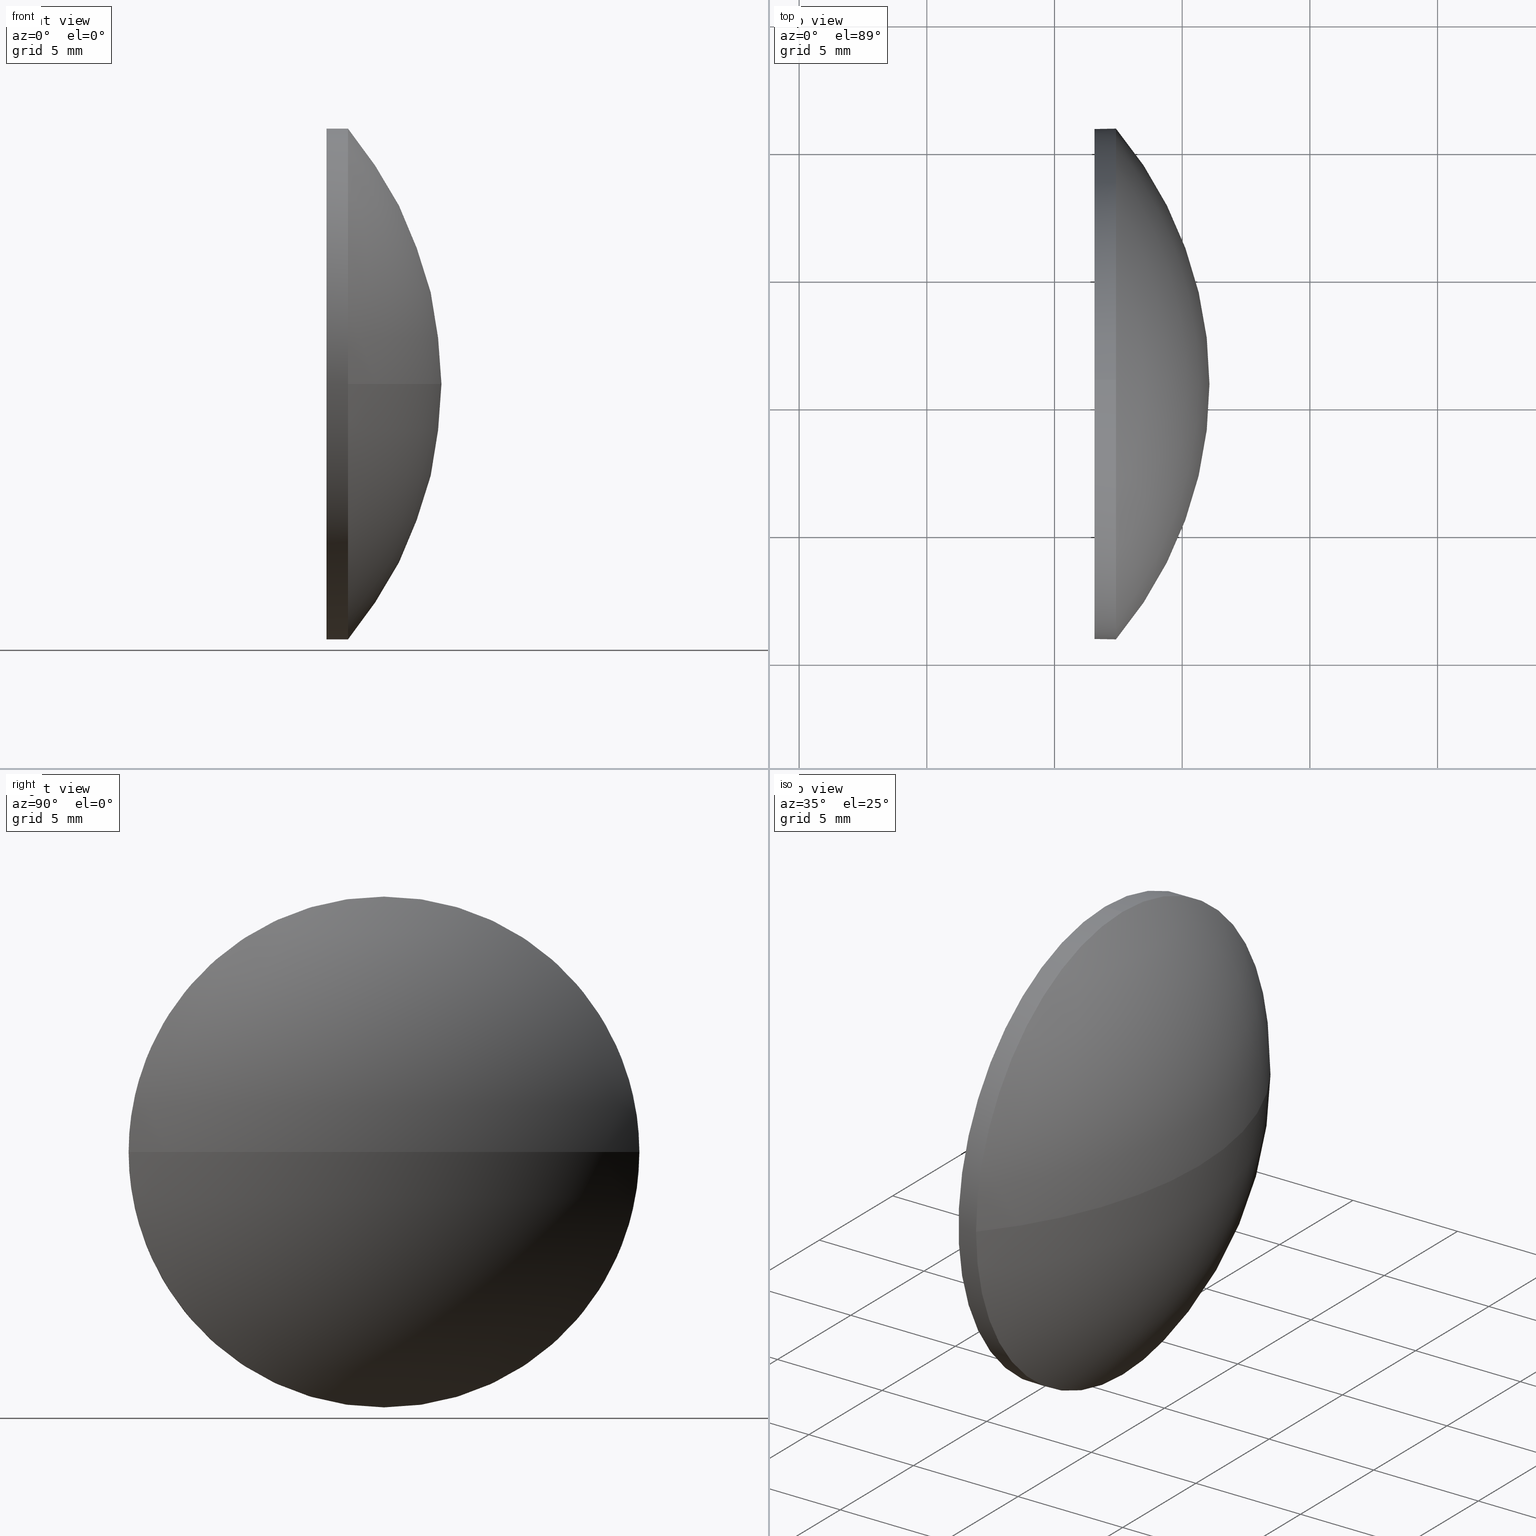
[diagram: canonical four-view strip — front | top / right | iso, engineering-drawing reading convention]
A machine part, canonical four-view strip (front | top / right | iso — engineering-drawing reading convention). The complete STEP part file that produces these views, byte-faithful:
ISO-10303-21;
HEADER;
FILE_DESCRIPTION (( 'STEP AP214' ),
    '1' );
FILE_NAME ('100034.STEP',
    '2019-04-25T08:01:24',
    ( '' ),
    ( '' ),
    'SwSTEP 2.0',
    'SolidWorks 2016',
    '' );
FILE_SCHEMA (( 'AUTOMOTIVE_DESIGN' ));
ENDSEC;

DATA;
#1 = CARTESIAN_POINT ( 'NONE',  ( 501.5675276990623400, 160.8342270699432700, 0.0000000000000000000 ) ) ;
#2 = PRESENTATION_LAYER_ASSIGNMENT (  '', '', ( #91 ) ) ;
#3 = PRESENTATION_LAYER_ASSIGNMENT (  '', '', ( #112 ) ) ;
#4 = AXIS2_PLACEMENT_3D ( 'NONE', #27, #118, #56 ) ;
#5 = EDGE_LOOP ( 'NONE', ( #8, #158, #129, #162, #146 ) ) ;
#6 =( NAMED_UNIT ( * ) PLANE_ANGLE_UNIT ( ) SI_UNIT ( $, .RADIAN. ) );
#7 = CARTESIAN_POINT ( 'NONE',  ( 0.0000000000000000000, 0.0000000000000000000, 0.0000000000000000000 ) ) ;
#8 = ORIENTED_EDGE ( 'NONE', *, *, #97, .T. ) ;
#9 = CIRCLE ( 'NONE', #16, 10.00000000000000900 ) ;
#10 = DIRECTION ( 'NONE',  ( 1.000000000000000000, 0.0000000000000000000, 0.0000000000000000000 ) ) ;
#11 = CARTESIAN_POINT ( 'NONE',  ( 502.4075276990623700, 160.8342270699432700, 0.0000000000000000000 ) ) ;
#12 = ORIENTED_EDGE ( 'NONE', *, *, #30, .T. ) ;
#13 = ORIENTED_EDGE ( 'NONE', *, *, #74, .F. ) ;
#14 = CARTESIAN_POINT ( 'NONE',  ( 496.9109419236094700, 160.8342270699432700, -10.00000000000000900 ) ) ;
#15 = ORIENTED_EDGE ( 'NONE', *, *, #38, .F. ) ;
#16 = AXIS2_PLACEMENT_3D ( 'NONE', #1, #18, #124 ) ;
#17 = ADVANCED_FACE ( 'NONE', ( #175 ), #55, .F. ) ;
#18 = DIRECTION ( 'NONE',  ( -1.000000000000000000, -0.0000000000000000000, -0.0000000000000000000 ) ) ;
#19 = CLOSED_SHELL ( 'NONE', ( #76, #154, #139, #58, #17 ) ) ;
#20 = COLOUR_RGB ( '',1.000000000000000000, 1.000000000000000000, 1.000000000000000000 ) ;
#21 = ORIENTED_EDGE ( 'NONE', *, *, #156, .T. ) ;
#22 = APPLICATION_CONTEXT ( 'automotive_design' ) ;
#23 = LINE ( 'NONE', #14, #134 ) ;
#24 = MECHANICAL_DESIGN_GEOMETRIC_PRESENTATION_REPRESENTATION (  '', ( #91 ), #166 ) ;
#25 =( NAMED_UNIT ( * ) PLANE_ANGLE_UNIT ( ) SI_UNIT ( $, .RADIAN. ) );
#26 = FACE_OUTER_BOUND ( 'NONE', #52, .T. ) ;
#27 = CARTESIAN_POINT ( 'NONE',  ( 502.4075276990623700, 160.8342270699432700, 0.0000000000000000000 ) ) ;
#28 = DIRECTION ( 'NONE',  ( 0.0000000000000000000, 1.224646799147353200E-016, -1.000000000000000000 ) ) ;
#29 = PRODUCT_DEFINITION_SHAPE ( 'NONE', 'NONE',  #151 ) ;
#30 = EDGE_CURVE ( 'NONE', #44, #48, #103, .T. ) ;
#31 = APPLICATION_CONTEXT ( 'automotive_design' ) ;
#32 = APPLICATION_PROTOCOL_DEFINITION ( 'draft international standard', 'automotive_design', 1998, #31 ) ;
#33 = DIRECTION ( 'NONE',  ( 0.0000000000000000000, 0.0000000000000000000, 1.000000000000000000 ) ) ;
#34 = CARTESIAN_POINT ( 'NONE',  ( 496.9109419236094700, 160.8342270699432700, 0.0000000000000000000 ) ) ;
#35 = FILL_AREA_STYLE ('',( #174 ) ) ;
#36 = DIRECTION ( 'NONE',  ( -1.000000000000000000, -0.0000000000000000000, -0.0000000000000000000 ) ) ;
#37 = ORIENTED_EDGE ( 'NONE', *, *, #150, .F. ) ;
#38 = EDGE_CURVE ( 'NONE', #100, #48, #178, .T. ) ;
#39 = ADVANCED_BREP_SHAPE_REPRESENTATION ( '100034', ( #60, #143 ), #179 ) ;
#40 = ORIENTED_EDGE ( 'NONE', *, *, #136, .F. ) ;
#41 = AXIS2_PLACEMENT_3D ( 'NONE', #149, #10, #72 ) ;
#42 = CIRCLE ( 'NONE', #157, 15.49120218579241900 ) ;
#43 = DIRECTION ( 'NONE',  ( 0.0000000000000000000, 1.000000000000000000, 0.0000000000000000000 ) ) ;
#44 = VERTEX_POINT ( 'NONE', #177 ) ;
#45 = SPHERICAL_SURFACE ( 'NONE', #153, 15.49120218579242400 ) ;
#46 = PRODUCT_CONTEXT ( 'NONE', #22, 'mechanical' ) ;
#47 = CARTESIAN_POINT ( 'NONE',  ( 496.9109419236094700, 160.8342270699432700, 10.00000000000000900 ) ) ;
#48 = VERTEX_POINT ( 'NONE', #159 ) ;
#49 = EDGE_CURVE ( 'NONE', #44, #132, #23, .T. ) ;
#50 =( NAMED_UNIT ( * ) SI_UNIT ( $, .STERADIAN. ) SOLID_ANGLE_UNIT ( ) );
#51 = CIRCLE ( 'NONE', #186, 10.00000000000000900 ) ;
#52 = EDGE_LOOP ( 'NONE', ( #15, #53, #40, #13 ) ) ;
#53 = ORIENTED_EDGE ( 'NONE', *, *, #150, .T. ) ;
#54 = AXIS2_PLACEMENT_3D ( 'NONE', #109, #28, #135 ) ;
#55 = PLANE ( 'NONE',  #41 ) ;
#56 = DIRECTION ( 'NONE',  ( 0.0000000000000000000, 0.0000000000000000000, 1.000000000000000000 ) ) ;
#57 = CYLINDRICAL_SURFACE ( 'NONE', #79, 10.00000000000000900 ) ;
#58 = ADVANCED_FACE ( 'NONE', ( #141 ), #96, .T. ) ;
#59 = DIRECTION ( 'NONE',  ( -0.0000000000000000000, 0.0000000000000000000, 1.000000000000000000 ) ) ;
#60 = MANIFOLD_SOLID_BREP ( '��ת1', #19 ) ;
#61 = CARTESIAN_POINT ( 'NONE',  ( 502.4075276990623700, 160.8342270699432700, 0.0000000000000000000 ) ) ;
#62 = CARTESIAN_POINT ( 'NONE',  ( 501.5675276990623400, 160.8342270699432700, -10.00000000000000900 ) ) ;
#63 = ORIENTED_EDGE ( 'NONE', *, *, #142, .T. ) ;
#64 = DIRECTION ( 'NONE',  ( -1.000000000000000000, -0.0000000000000000000, -0.0000000000000000000 ) ) ;
#65 = EDGE_CURVE ( 'NONE', #132, #126, #51, .T. ) ;
#66 = CARTESIAN_POINT ( 'NONE',  ( 496.9109419236094700, 160.8342270699432700, 0.0000000000000000000 ) ) ;
#67 = FILL_AREA_STYLE_COLOUR ( '', #20 ) ;
#68 = COLOUR_RGB ( '',1.000000000000000000, 1.000000000000000000, 1.000000000000000000 ) ;
#69 = DIRECTION ( 'NONE',  ( 1.000000000000000000, 0.0000000000000000000, 0.0000000000000000000 ) ) ;
#70 = CARTESIAN_POINT ( 'NONE',  ( 502.4075276990623700, 160.8342270699432700, 10.00000000000000900 ) ) ;
#71 = MECHANICAL_DESIGN_GEOMETRIC_PRESENTATION_REPRESENTATION (  '', ( #112 ), #105 ) ;
#72 = DIRECTION ( 'NONE',  ( 0.0000000000000000000, 0.0000000000000000000, -1.000000000000000000 ) ) ;
#73 = SHAPE_DEFINITION_REPRESENTATION ( #29, #39 ) ;
#74 = EDGE_CURVE ( 'NONE', #48, #125, #99, .T. ) ;
#75 = PRODUCT_RELATED_PRODUCT_CATEGORY ( 'part', '', ( #98 ) ) ;
#76 = ADVANCED_FACE ( 'NONE', ( #137 ), #57, .T. ) ;
#77 = DIRECTION ( 'NONE',  ( 0.0000000000000000000, 0.0000000000000000000, 1.000000000000000000 ) ) ;
#78 = DIRECTION ( 'NONE',  ( -1.000000000000000000, -0.0000000000000000000, -0.0000000000000000000 ) ) ;
#79 = AXIS2_PLACEMENT_3D ( 'NONE', #66, #81, #170 ) ;
#80 = ORIENTED_EDGE ( 'NONE', *, *, #65, .T. ) ;
#81 = DIRECTION ( 'NONE',  ( -1.000000000000000000, -0.0000000000000000000, -0.0000000000000000000 ) ) ;
#82 =( LENGTH_UNIT ( ) NAMED_UNIT ( * ) SI_UNIT ( .MILLI., .METRE. ) );
#83 = DIRECTION ( 'NONE',  ( -1.000000000000000000, -0.0000000000000000000, -0.0000000000000000000 ) ) ;
#84 = SURFACE_SIDE_STYLE ('',( #181 ) ) ;
#85 = ORIENTED_EDGE ( 'NONE', *, *, #49, .F. ) ;
#86 = ORIENTED_EDGE ( 'NONE', *, *, #38, .T. ) ;
#87 = EDGE_LOOP ( 'NONE', ( #37, #86, #101, #138 ) ) ;
#88 = CIRCLE ( 'NONE', #145, 10.00000000000000900 ) ;
#89 = AXIS2_PLACEMENT_3D ( 'NONE', #34, #176, #33 ) ;
#90 = EDGE_LOOP ( 'NONE', ( #85, #12, #163, #21, #168 ) ) ;
#91 = STYLED_ITEM ( 'NONE', ( #161 ), #39 ) ;
#92 = CARTESIAN_POINT ( 'NONE',  ( 490.5763255132699800, 160.8342270699432400, 0.0000000000000000000 ) ) ;
#93 = SPHERICAL_SURFACE ( 'NONE', #169, 15.49120218579242400 ) ;
#94 = DIRECTION ( 'NONE',  ( 0.0000000000000000000, 1.000000000000000000, 0.0000000000000000000 ) ) ;
#95 = DIRECTION ( 'NONE',  ( -1.000000000000000000, -0.0000000000000000000, -0.0000000000000000000 ) ) ;
#96 = CYLINDRICAL_SURFACE ( 'NONE', #89, 10.00000000000000900 ) ;
#97 = EDGE_CURVE ( 'NONE', #110, #44, #130, .T. ) ;
#98 = PRODUCT ( '100034', '100034', '', ( #46 ) ) ;
#99 = CIRCLE ( 'NONE', #121, 10.00000000000000900 ) ;
#100 = VERTEX_POINT ( 'NONE', #133 ) ;
#101 = ORIENTED_EDGE ( 'NONE', *, *, #30, .F. ) ;
#102 = SURFACE_STYLE_USAGE ( .BOTH. , #115 ) ;
#103 = CIRCLE ( 'NONE', #4, 10.00000000000000900 ) ;
#104 =( NAMED_UNIT ( * ) SI_UNIT ( $, .STERADIAN. ) SOLID_ANGLE_UNIT ( ) );
#105 =( GEOMETRIC_REPRESENTATION_CONTEXT ( 3 ) GLOBAL_UNCERTAINTY_ASSIGNED_CONTEXT ( ( #106 ) ) GLOBAL_UNIT_ASSIGNED_CONTEXT ( ( #117, #25, #50 ) ) REPRESENTATION_CONTEXT ( 'NONE', 'WORKASPACE' ) );
#106 = UNCERTAINTY_MEASURE_WITH_UNIT (LENGTH_MEASURE( 1.000000000000000100E-005 ), #117, 'distance_accuracy_value', 'NONE');
#107 = PRODUCT_DEFINITION_CONTEXT ( 'detailed design', #31, 'design' ) ;
#108 = PRESENTATION_STYLE_ASSIGNMENT (( #184 ) ) ;
#109 = CARTESIAN_POINT ( 'NONE',  ( 490.5763255132699800, 160.8342270699432400, 0.0000000000000000000 ) ) ;
#110 = VERTEX_POINT ( 'NONE', #116 ) ;
#111 = DIRECTION ( 'NONE',  ( -0.0000000000000000000, 0.0000000000000000000, -1.000000000000000000 ) ) ;
#112 = STYLED_ITEM ( 'NONE', ( #108 ), #60 ) ;
#113 =( NAMED_UNIT ( * ) SI_UNIT ( $, .STERADIAN. ) SOLID_ANGLE_UNIT ( ) );
#114 = FILL_AREA_STYLE ('',( #67 ) ) ;
#115 = SURFACE_SIDE_STYLE ('',( #120 ) ) ;
#116 = CARTESIAN_POINT ( 'NONE',  ( 502.4075276990623700, 170.8342270699432700, 0.0000000000000000000 ) ) ;
#117 =( LENGTH_UNIT ( ) NAMED_UNIT ( * ) SI_UNIT ( .MILLI., .METRE. ) );
#118 = DIRECTION ( 'NONE',  ( -1.000000000000000000, -0.0000000000000000000, -0.0000000000000000000 ) ) ;
#119 = CARTESIAN_POINT ( 'NONE',  ( 501.5675276990623400, 160.8342270699432700, 10.00000000000000900 ) ) ;
#120 = SURFACE_STYLE_FILL_AREA ( #114 ) ;
#121 = AXIS2_PLACEMENT_3D ( 'NONE', #11, #36, #148 ) ;
#122 = EDGE_LOOP ( 'NONE', ( #63, #80 ) ) ;
#123 = CARTESIAN_POINT ( 'NONE',  ( 502.4075276990623700, 160.8342270699432700, 0.0000000000000000000 ) ) ;
#124 = DIRECTION ( 'NONE',  ( 0.0000000000000000000, 0.0000000000000000000, 1.000000000000000000 ) ) ;
#125 = VERTEX_POINT ( 'NONE', #70 ) ;
#126 = VERTEX_POINT ( 'NONE', #119 ) ;
#127 =( NAMED_UNIT ( * ) PLANE_ANGLE_UNIT ( ) SI_UNIT ( $, .RADIAN. ) );
#128 = DIRECTION ( 'NONE',  ( 1.000000000000000000, 0.0000000000000000000, 0.0000000000000000000 ) ) ;
#129 = ORIENTED_EDGE ( 'NONE', *, *, #142, .F. ) ;
#130 = CIRCLE ( 'NONE', #131, 10.00000000000000900 ) ;
#131 = AXIS2_PLACEMENT_3D ( 'NONE', #123, #95, #167 ) ;
#132 = VERTEX_POINT ( 'NONE', #62 ) ;
#133 = CARTESIAN_POINT ( 'NONE',  ( 506.0675276990624000, 160.8342270699432400, 0.0000000000000000000 ) ) ;
#134 = VECTOR ( 'NONE', #147, 1000.000000000000000 ) ;
#135 = DIRECTION ( 'NONE',  ( 0.0000000000000000000, 1.000000000000000000, 1.224646799147353700E-016 ) ) ;
#136 = EDGE_CURVE ( 'NONE', #125, #110, #88, .T. ) ;
#137 = FACE_OUTER_BOUND ( 'NONE', #5, .T. ) ;
#138 = ORIENTED_EDGE ( 'NONE', *, *, #97, .F. ) ;
#139 = ADVANCED_FACE ( 'NONE', ( #26 ), #45, .T. ) ;
#140 = CARTESIAN_POINT ( 'NONE',  ( 490.5763255132699800, 160.8342270699432400, 0.0000000000000000000 ) ) ;
#141 = FACE_OUTER_BOUND ( 'NONE', #90, .T. ) ;
#142 = EDGE_CURVE ( 'NONE', #126, #132, #9, .T. ) ;
#143 = AXIS2_PLACEMENT_3D ( 'NONE', #7, #172, #128 ) ;
#144 = CARTESIAN_POINT ( 'NONE',  ( 501.5675276990623400, 160.8342270699432700, 0.0000000000000000000 ) ) ;
#145 = AXIS2_PLACEMENT_3D ( 'NONE', #61, #78, #77 ) ;
#146 = ORIENTED_EDGE ( 'NONE', *, *, #136, .T. ) ;
#147 = DIRECTION ( 'NONE',  ( -1.000000000000000000, -0.0000000000000000000, -0.0000000000000000000 ) ) ;
#148 = DIRECTION ( 'NONE',  ( 0.0000000000000000000, 0.0000000000000000000, 1.000000000000000000 ) ) ;
#149 = CARTESIAN_POINT ( 'NONE',  ( 501.5675276990623400, 160.8342270699432700, 0.0000000000000000000 ) ) ;
#150 = EDGE_CURVE ( 'NONE', #100, #110, #42, .T. ) ;
#151 = PRODUCT_DEFINITION ( 'δ֪', '', #185, #107 ) ;
#152 = UNCERTAINTY_MEASURE_WITH_UNIT (LENGTH_MEASURE( 1.000000000000000100E-005 ), #183, 'distance_accuracy_value', 'NONE');
#153 = AXIS2_PLACEMENT_3D ( 'NONE', #180, #111, #94 ) ;
#154 = ADVANCED_FACE ( 'NONE', ( #164 ), #93, .T. ) ;
#155 = DIRECTION ( 'NONE',  ( 0.0000000000000000000, 0.0000000000000000000, 1.000000000000000000 ) ) ;
#156 = EDGE_CURVE ( 'NONE', #125, #126, #171, .T. ) ;
#157 = AXIS2_PLACEMENT_3D ( 'NONE', #92, #59, #69 ) ;
#158 = ORIENTED_EDGE ( 'NONE', *, *, #49, .T. ) ;
#159 = CARTESIAN_POINT ( 'NONE',  ( 502.4075276990623700, 150.8342270699432400, -1.224646799147354000E-015 ) ) ;
#160 = VECTOR ( 'NONE', #83, 1000.000000000000000 ) ;
#161 = PRESENTATION_STYLE_ASSIGNMENT (( #102 ) ) ;
#162 = ORIENTED_EDGE ( 'NONE', *, *, #156, .F. ) ;
#163 = ORIENTED_EDGE ( 'NONE', *, *, #74, .T. ) ;
#164 = FACE_OUTER_BOUND ( 'NONE', #87, .T. ) ;
#165 = DIRECTION ( 'NONE',  ( -0.0000000000000000000, 0.0000000000000000000, -1.000000000000000000 ) ) ;
#166 =( GEOMETRIC_REPRESENTATION_CONTEXT ( 3 ) GLOBAL_UNCERTAINTY_ASSIGNED_CONTEXT ( ( #182 ) ) GLOBAL_UNIT_ASSIGNED_CONTEXT ( ( #82, #6, #113 ) ) REPRESENTATION_CONTEXT ( 'NONE', 'WORKASPACE' ) );
#167 = DIRECTION ( 'NONE',  ( 0.0000000000000000000, 0.0000000000000000000, 1.000000000000000000 ) ) ;
#168 = ORIENTED_EDGE ( 'NONE', *, *, #65, .F. ) ;
#169 = AXIS2_PLACEMENT_3D ( 'NONE', #140, #165, #43 ) ;
#170 = DIRECTION ( 'NONE',  ( 0.0000000000000000000, 0.0000000000000000000, 1.000000000000000000 ) ) ;
#171 = LINE ( 'NONE', #47, #160 ) ;
#172 = DIRECTION ( 'NONE',  ( 0.0000000000000000000, 0.0000000000000000000, 1.000000000000000000 ) ) ;
#173 = APPLICATION_PROTOCOL_DEFINITION ( 'draft international standard', 'automotive_design', 1998, #22 ) ;
#174 = FILL_AREA_STYLE_COLOUR ( '', #68 ) ;
#175 = FACE_OUTER_BOUND ( 'NONE', #122, .T. ) ;
#176 = DIRECTION ( 'NONE',  ( -1.000000000000000000, -0.0000000000000000000, -0.0000000000000000000 ) ) ;
#177 = CARTESIAN_POINT ( 'NONE',  ( 502.4075276990623700, 160.8342270699432700, -10.00000000000000900 ) ) ;
#178 = CIRCLE ( 'NONE', #54, 15.49120218579241900 ) ;
#179 =( GEOMETRIC_REPRESENTATION_CONTEXT ( 3 ) GLOBAL_UNCERTAINTY_ASSIGNED_CONTEXT ( ( #152 ) ) GLOBAL_UNIT_ASSIGNED_CONTEXT ( ( #183, #127, #104 ) ) REPRESENTATION_CONTEXT ( 'NONE', 'WORKASPACE' ) );
#180 = CARTESIAN_POINT ( 'NONE',  ( 490.5763255132699800, 160.8342270699432400, 0.0000000000000000000 ) ) ;
#181 = SURFACE_STYLE_FILL_AREA ( #35 ) ;
#182 = UNCERTAINTY_MEASURE_WITH_UNIT (LENGTH_MEASURE( 1.000000000000000100E-005 ), #82, 'distance_accuracy_value', 'NONE');
#183 =( LENGTH_UNIT ( ) NAMED_UNIT ( * ) SI_UNIT ( .MILLI., .METRE. ) );
#184 = SURFACE_STYLE_USAGE ( .BOTH. , #84 ) ;
#185 = PRODUCT_DEFINITION_FORMATION_WITH_SPECIFIED_SOURCE ( '�κ�', '', #98, .NOT_KNOWN. ) ;
#186 = AXIS2_PLACEMENT_3D ( 'NONE', #144, #64, #155 ) ;
ENDSEC;
END-ISO-10303-21;
